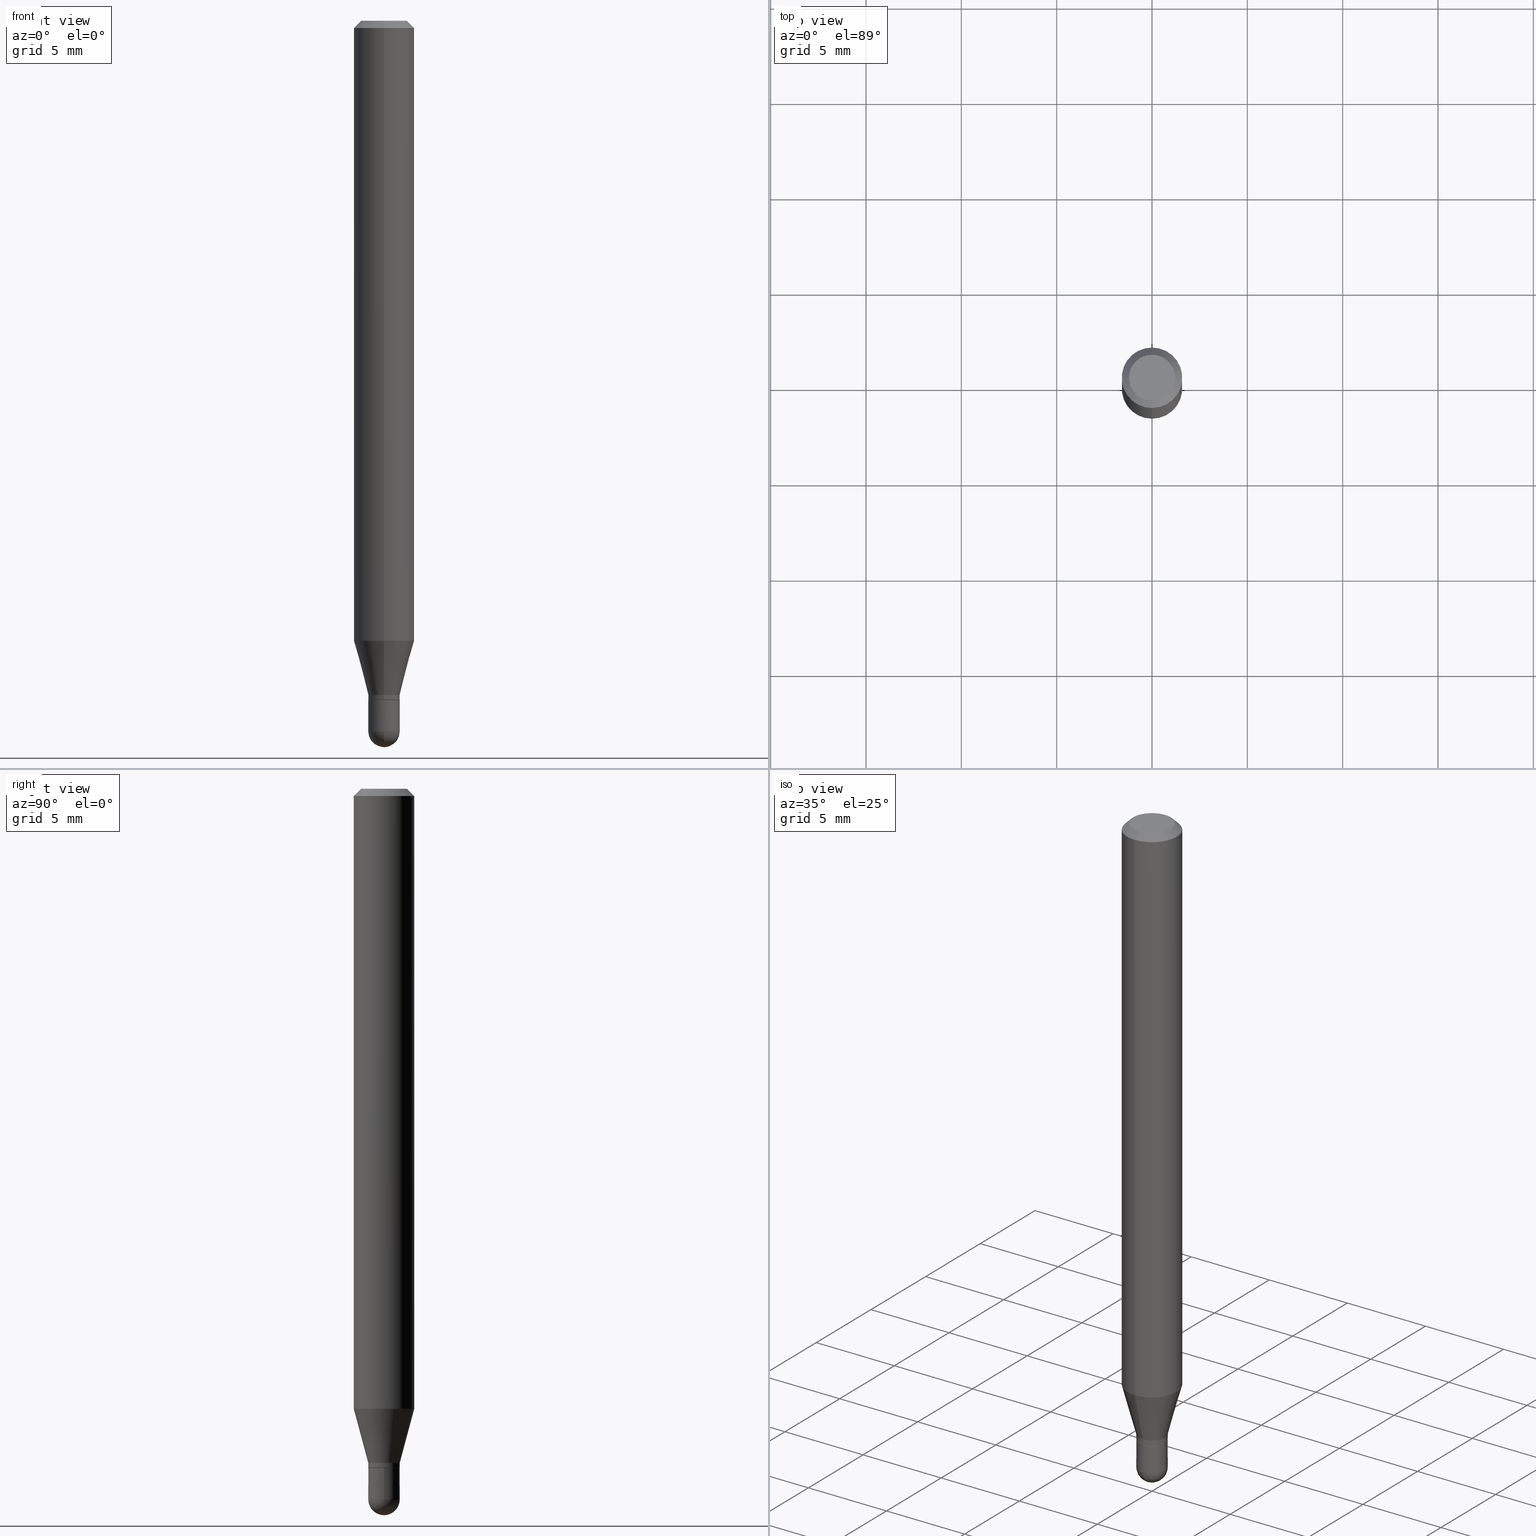
[diagram: canonical four-view strip — front | top / right | iso, engineering-drawing reading convention]
A machine part, canonical four-view strip (front | top / right | iso — engineering-drawing reading convention). The complete STEP part file that produces these views, byte-faithful:
ISO-10303-21;
HEADER;
FILE_DESCRIPTION (( 'STEP AP203' ),
    '1' );
FILE_NAME ('02525.STEP',
    '2024-03-07T20:14:40',
    ( '' ),
    ( '' ),
    'SwSTEP 2.0',
    'SolidWorks 2023',
    '' );
FILE_SCHEMA (( 'CONFIG_CONTROL_DESIGN' ));
ENDSEC;

DATA;
#1 = DIRECTION ( 'NONE',  ( -6.982962677686266711E-15, -1.000000000000000000, 0.000000000000000000 ) ) ;
#2 = EDGE_CURVE ( 'NONE', #100, #91, #437, .T. ) ;
#3 = PERSON_AND_ORGANIZATION ( #497, #474 ) ;
#4 = CARTESIAN_POINT ( 'NONE',  ( 2.309263891220689052E-16, 0.03249999999999494960, -1.467500000000000027 ) ) ;
#5 = EDGE_CURVE ( 'NONE', #8, #217, #399, .T. ) ;
#6 = DIRECTION ( 'NONE',  ( -2.445424704910742757E-29, 3.491544494378165710E-15, 1.000000000000000000 ) ) ;
#7 = VECTOR ( 'NONE', #508, 39.37007874015748143 ) ;
#8 = VERTEX_POINT ( 'NONE', #441 ) ;
#9 = CARTESIAN_POINT ( 'NONE',  ( 3.585946182636855061E-29, -5.127728966849546308E-15, -1.467500000000000027 ) ) ;
#10 = ORIENTED_EDGE ( 'NONE', *, *, #166, .F. ) ;
#11 = DIRECTION ( 'NONE',  ( 2.445424704910742757E-29, -3.491544494378165710E-15, -1.000000000000000000 ) ) ;
#12 = EDGE_CURVE ( 'NONE', #217, #209, #115, .T. ) ;
#13 = CARTESIAN_POINT ( 'NONE',  ( 0.03250000000000000111, -5.236349137930007031E-15, -1.467500000000000027 ) ) ;
#14 = VECTOR ( 'NONE', #493, 39.37007874015748143 ) ;
#15 = AXIS2_PLACEMENT_3D ( 'NONE', #360, #369, #72 ) ;
#16 = DIRECTION ( 'NONE',  ( -2.445424704910742757E-29, 3.491544494378166105E-15, 1.000000000000000000 ) ) ;
#17 = DIRECTION ( 'NONE',  ( -2.445424704910742757E-29, 3.491544494378166105E-15, 1.000000000000000000 ) ) ;
#18 = DIRECTION ( 'NONE',  ( -6.982962677686265922E-15, -1.000000000000000000, 3.483106191921935554E-15 ) ) ;
#19 = ORIENTED_EDGE ( 'NONE', *, *, #135, .F. ) ;
#20 = EDGE_LOOP ( 'NONE', ( #484, #252, #335, #136 ) ) ;
#21 = DIRECTION ( 'NONE',  ( -2.445424704910742757E-29, 3.491544494378166105E-15, 1.000000000000000000 ) ) ;
#22 = VERTEX_POINT ( 'NONE', #434 ) ;
#23 = PRODUCT_DEFINITION_FORMATION_WITH_SPECIFIED_SOURCE ( 'ANY', '', #317, .NOT_KNOWN. ) ;
#24 = ORIENTED_EDGE ( 'NONE', *, *, #161, .F. ) ;
#25 = DIRECTION ( 'NONE',  ( -2.445424704910742757E-29, 3.491544494378166105E-15, 1.000000000000000000 ) ) ;
#26 = ORIENTED_EDGE ( 'NONE', *, *, #132, .T. ) ;
#27 = EDGE_CURVE ( 'NONE', #349, #451, #153, .T. ) ;
#28 = PERSON_AND_ORGANIZATION ( #497, #474 ) ;
#29 = CARTESIAN_POINT ( 'NONE',  ( 8.024513167763535209E-45, -1.145729194389263132E-30, -3.281439478242462597E-16 ) ) ;
#30 = AXIS2_PLACEMENT_3D ( 'NONE', #173, #454, #299 ) ;
#31 = CARTESIAN_POINT ( 'NONE',  ( 3.840629472727447874E-16, 0.04749999999999999362, -4.939923113072091241E-16 ) ) ;
#32 = DATE_TIME_ROLE ( 'creation_date' ) ;
#33 = CC_DESIGN_PERSON_AND_ORGANIZATION_ASSIGNMENT ( #28, #235, ( #131 ) ) ;
#34 = DIRECTION ( 'NONE',  ( -2.445424704910742757E-29, 3.491544494378166105E-15, 1.000000000000000000 ) ) ;
#35 = CARTESIAN_POINT ( 'NONE',  ( 3.130237711891426451E-29, -4.469311292677210707E-15, -1.280038475772935058 ) ) ;
#36 = CLOSED_SHELL ( 'NONE', ( #67, #192, #120, #141, #245 ) ) ;
#37 = SPHERICAL_SURFACE ( 'NONE', #406, 0.03250000000000013989 ) ;
#38 = CALENDAR_DATE ( 2024, 7, 3 ) ;
#39 = SPHERICAL_SURFACE ( 'NONE', #248, 0.03250000000000013989 ) ;
#40 = EDGE_LOOP ( 'NONE', ( #257, #302, #81, #183 ) ) ;
#41 = CARTESIAN_POINT ( 'NONE',  ( 3.428485436284862340E-29, -4.895145381118190532E-15, -1.402000000000000135 ) ) ;
#42 = DIRECTION ( 'NONE',  ( -6.982962677686265922E-15, -1.000000000000000000, 3.491544494378165710E-15 ) ) ;
#43 = AXIS2_PLACEMENT_3D ( 'NONE', #71, #234, #195 ) ;
#44 = AXIS2_PLACEMENT_3D ( 'NONE', #77, #241, #412 ) ;
#45 = VERTEX_POINT ( 'NONE', #146 ) ;
#46 = CARTESIAN_POINT ( 'NONE',  ( 0.03250000000000000111, -5.122003124082894208E-15, -1.402000000000000135 ) ) ;
#47 = ADVANCED_FACE ( 'NONE', ( #403 ), #104, .T. ) ;
#48 = ORIENTED_EDGE ( 'NONE', *, *, #5, .F. ) ;
#49 = CARTESIAN_POINT ( 'NONE',  ( 3.588725473076687933E-29, -5.123748864752316500E-15, -1.467500000000000027 ) ) ;
#50 = EDGE_LOOP ( 'NONE', ( #167, #499, #169, #422 ) ) ;
#51 = DIRECTION ( 'NONE',  ( -2.445424704910742757E-29, 3.491544494378166105E-15, 1.000000000000000000 ) ) ;
#52 = AXIS2_PLACEMENT_3D ( 'NONE', #496, #139, #250 ) ;
#53 = LOCAL_TIME ( 15, 14, 40.00000000000000000, #159 ) ;
#54 = FACE_OUTER_BOUND ( 'NONE', #50, .T. ) ;
#55 = EDGE_LOOP ( 'NONE', ( #300, #122, #94, #291 ) ) ;
#56 = ADVANCED_FACE ( 'NONE', ( #501 ), #357, .T. ) ;
#57 = FACE_OUTER_BOUND ( 'NONE', #216, .T. ) ;
#58 = APPLICATION_PROTOCOL_DEFINITION ( 'international standard', 'config_control_design', 1994, #418 ) ;
#59 = ORIENTED_EDGE ( 'NONE', *, *, #447, .F. ) ;
#60 = AXIS2_PLACEMENT_3D ( 'NONE', #341, #16, #215 ) ;
#61 = DIRECTION ( 'NONE',  ( 1.000000000000000000, -6.982962677686258033E-15, 0.000000000000000000 ) ) ;
#62 = EDGE_CURVE ( 'NONE', #8, #142, #361, .T. ) ;
#63 = DIRECTION ( 'NONE',  ( -2.445468806185136877E-29, 3.491481338843145188E-15, 1.000000000000000000 ) ) ;
#64 = APPROVAL_DATE_TIME ( #469, #456 ) ;
#65 = DIRECTION ( 'NONE',  ( -1.000000000000000000, 6.982962677686265922E-15, -4.876176775795935793E-29 ) ) ;
#66 = CYLINDRICAL_SURFACE ( 'NONE', #337, 0.03250000000000000111 ) ;
#67 = ADVANCED_FACE ( 'NONE', ( #504 ), #66, .T. ) ;
#68 = CIRCLE ( 'NONE', #15, 0.03250000000000013989 ) ;
#69 = PERSON_AND_ORGANIZATION ( #497, #474 ) ;
#70 = CC_DESIGN_SECURITY_CLASSIFICATION ( #131, ( #23 ) ) ;
#71 = CARTESIAN_POINT ( 'NONE',  ( 3.404031189235755546E-29, -4.860229936174407704E-15, -1.392000000000000348 ) ) ;
#72 = DIRECTION ( 'NONE',  ( -6.982962677686266711E-15, -1.000000000000000000, 0.000000000000000000 ) ) ;
#73 = CARTESIAN_POINT ( 'NONE',  ( 3.668137057366194728E-31, -5.237316741567363887E-17, -0.01500000000000032904 ) ) ;
#74 = ORIENTED_EDGE ( 'NONE', *, *, #111, .F. ) ;
#75 = AXIS2_PLACEMENT_3D ( 'NONE', #312, #34, #190 ) ;
#76 = AXIS2_PLACEMENT_3D ( 'NONE', #494, #459, #424 ) ;
#77 = CARTESIAN_POINT ( 'NONE',  ( 0.000000000000000000, 0.000000000000000000, 0.000000000000000000 ) ) ;
#78 = EDGE_CURVE ( 'NONE', #140, #92, #470, .T. ) ;
#79 = LINE ( 'NONE', #244, #375 ) ;
#80 = DIRECTION ( 'NONE',  ( -6.982962677686265133E-15, -1.000000000000000000, 0.000000000000000000 ) ) ;
#81 = ORIENTED_EDGE ( 'NONE', *, *, #489, .F. ) ;
#82 = EDGE_CURVE ( 'NONE', #45, #140, #288, .T. ) ;
#83 = AXIS2_PLACEMENT_3D ( 'NONE', #315, #17, #108 ) ;
#84 = FACE_OUTER_BOUND ( 'NONE', #55, .T. ) ;
#85 = LOCAL_TIME ( 15, 14, 40.00000000000000000, #500 ) ;
#86 = ORIENTED_EDGE ( 'NONE', *, *, #442, .F. ) ;
#87 = CYLINDRICAL_SURFACE ( 'NONE', #502, 0.03250000000000006356 ) ;
#88 = EDGE_LOOP ( 'NONE', ( #425, #237, #207, #391 ) ) ;
#89 = DIRECTION ( 'NONE',  ( -6.982962677686265922E-15, -1.000000000000000000, 3.491544494378166105E-15 ) ) ;
#90 = CARTESIAN_POINT ( 'NONE',  ( 3.668137057366194728E-31, -5.237316741567363887E-17, -0.01500000000000032904 ) ) ;
#91 = VERTEX_POINT ( 'NONE', #270 ) ;
#92 = VERTEX_POINT ( 'NONE', #107 ) ;
#93 = CIRCLE ( 'NONE', #311, 0.04749999999999999362 ) ;
#94 = ORIENTED_EDGE ( 'NONE', *, *, #111, .T. ) ;
#95 = VECTOR ( 'NONE', #346, 39.37007874015748143 ) ;
#96 = DIRECTION ( 'NONE',  ( -2.445424704910742757E-29, 3.491544494378166105E-15, 1.000000000000000000 ) ) ;
#97 = EDGE_CURVE ( 'NONE', #142, #209, #430, .T. ) ;
#98 = DIRECTION ( 'NONE',  ( -2.445468806185136597E-29, 3.491481338843145583E-15, 1.000000000000000000 ) ) ;
#99 = ORIENTED_EDGE ( 'NONE', *, *, #488, .F. ) ;
#100 = VERTEX_POINT ( 'NONE', #31 ) ;
#101 = EDGE_CURVE ( 'NONE', #92, #151, #193, .T. ) ;
#102 = COORDINATED_UNIVERSAL_TIME_OFFSET ( 5, 0, .BEHIND. ) ;
#103 = FACE_OUTER_BOUND ( 'NONE', #204, .T. ) ;
#104 = CONICAL_SURFACE ( 'NONE', #191, 0.03200000000000000067, 0.7853981633974739252 ) ;
#105 = CONICAL_SURFACE ( 'NONE', #407, 0.03200000000000000067, 0.7853981633974739252 ) ;
#106 = CALENDAR_DATE ( 2024, 7, 3 ) ;
#107 = CARTESIAN_POINT ( 'NONE',  ( -4.364351673553605094E-16, -0.06250000000000451028, -1.280038475772934836 ) ) ;
#108 = DIRECTION ( 'NONE',  ( -6.982962677686265922E-15, -1.000000000000000000, 3.491544494378165710E-15 ) ) ;
#109 = EDGE_LOOP ( 'NONE', ( #223, #372, #333, #179 ) ) ;
#110 = PRODUCT_RELATED_PRODUCT_CATEGORY ( 'detail', '', ( #317 ) ) ;
#111 = EDGE_CURVE ( 'NONE', #100, #331, #155, .T. ) ;
#112 = CALENDAR_DATE ( 2024, 7, 3 ) ;
#113 = DESIGN_CONTEXT ( 'detailed design', #418, 'design' ) ;
#114 = DIRECTION ( 'NONE',  ( -4.937700262164674260E-15, -0.7071067811865632269, 0.7071067811865319186 ) ) ;
#115 = CIRCLE ( 'NONE', #413, 0.03249999999999992478 ) ;
#116 = VECTOR ( 'NONE', #268, 39.37007874015748143 ) ;
#117 = CONICAL_SURFACE ( 'NONE', #400, 0.06250000000000000000, 0.7853981633974483900 ) ;
#118 = DIRECTION ( 'NONE',  ( 2.438088387897960049E-29, -3.491481338843145188E-15, -1.000000000000000000 ) ) ;
#119 = DIRECTION ( 'NONE',  ( 1.000000000000000000, -6.982962677686266711E-15, 4.883557194083112901E-29 ) ) ;
#120 = ADVANCED_FACE ( 'NONE', ( #103 ), #432, .F. ) ;
#121 = FACE_OUTER_BOUND ( 'NONE', #460, .T. ) ;
#122 = ORIENTED_EDGE ( 'NONE', *, *, #2, .F. ) ;
#123 = CARTESIAN_POINT ( 'NONE',  ( 2.291500322826662373E-16, 0.03199999999999510181, -1.402000000000000135 ) ) ;
#124 = FACE_OUTER_BOUND ( 'NONE', #20, .T. ) ;
#125 = CARTESIAN_POINT ( 'NONE',  ( 4.440892098500935790E-16, 0.06249999999999548972, -1.280038475772935502 ) ) ;
#126 = ORIENTED_EDGE ( 'NONE', *, *, #442, .T. ) ;
#127 = AXIS2_PLACEMENT_3D ( 'NONE', #475, #118, #65 ) ;
#128 = CYLINDRICAL_SURFACE ( 'NONE', #446, 0.06250000000000000000 ) ;
#129 = CIRCLE ( 'NONE', #147, 0.03249999999999992478 ) ;
#130 = ORIENTED_EDGE ( 'NONE', *, *, #280, .T. ) ;
#131 = SECURITY_CLASSIFICATION ( '', '', #402 ) ;
#132 = EDGE_CURVE ( 'NONE', #22, #336, #276, .T. ) ;
#133 = DIRECTION ( 'NONE',  ( -2.445468806185136597E-29, 3.491481338843145583E-15, 1.000000000000000000 ) ) ;
#134 = CARTESIAN_POINT ( 'NONE',  ( 2.309263891220329627E-16, 0.03250000000000006356, -1.134751960672906183E-16 ) ) ;
#135 = EDGE_CURVE ( 'NONE', #91, #100, #93, .T. ) ;
#136 = ORIENTED_EDGE ( 'NONE', *, *, #388, .F. ) ;
#137 = FACE_OUTER_BOUND ( 'NONE', #40, .T. ) ;
#138 = APPROVAL_PERSON_ORGANIZATION ( #427, #325, #389 ) ;
#139 = DIRECTION ( 'NONE',  ( -2.445468806185136597E-29, 3.491481338843145583E-15, 1.000000000000000000 ) ) ;
#140 = VERTEX_POINT ( 'NONE', #324 ) ;
#141 = ADVANCED_FACE ( 'NONE', ( #404 ), #39, .T. ) ;
#142 = VERTEX_POINT ( 'NONE', #123 ) ;
#143 =( NAMED_UNIT ( * ) PLANE_ANGLE_UNIT ( ) SI_UNIT ( $, .RADIAN. ) );
#144 = CARTESIAN_POINT ( 'NONE',  ( -0.03250000000000000111, 2.309263891220325683E-16, -1.598653904332844407E-30 ) ) ;
#145 = ORIENTED_EDGE ( 'NONE', *, *, #157, .T. ) ;
#146 = CARTESIAN_POINT ( 'NONE',  ( 3.375077994860809709E-16, 0.03249999999999533817, -1.392000000000000348 ) ) ;
#147 = AXIS2_PLACEMENT_3D ( 'NONE', #163, #206, #328 ) ;
#148 = CALENDAR_DATE ( 2024, 7, 3 ) ;
#149 = CC_DESIGN_PERSON_AND_ORGANIZATION_ASSIGNMENT ( #436, #467, ( #307 ) ) ;
#150 = EDGE_LOOP ( 'NONE', ( #272, #26, #59, #344, #297 ) ) ;
#151 = VERTEX_POINT ( 'NONE', #283 ) ;
#152 = DIRECTION ( 'NONE',  ( 1.000000000000000000, -6.982962677686258033E-15, 0.000000000000000000 ) ) ;
#153 = LINE ( 'NONE', #265, #510 ) ;
#154 = ADVANCED_FACE ( 'NONE', ( #409 ), #428, .T. ) ;
#155 = LINE ( 'NONE', #320, #116 ) ;
#156 = AXIS2_PLACEMENT_3D ( 'NONE', #411, #239, #512 ) ;
#157 = EDGE_CURVE ( 'NONE', #45, #293, #443, .T. ) ;
#158 = CIRCLE ( 'NONE', #52, 0.03250000000000000111 ) ;
#159 = COORDINATED_UNIVERSAL_TIME_OFFSET ( 5, 0, .BEHIND. ) ;
#160 = DIRECTION ( 'NONE',  ( 1.839019923739600315E-15, 0.2588190451025249583, 0.9659258262890670910 ) ) ;
#161 = EDGE_CURVE ( 'NONE', #92, #293, #198, .T. ) ;
#162 = CARTESIAN_POINT ( 'NONE',  ( 2.309263891220654539E-16, 0.03249999999999491490, -1.401500000000000412 ) ) ;
#163 = CARTESIAN_POINT ( 'NONE',  ( 3.427262723932406552E-29, -4.893399608871000681E-15, -1.401500000000000412 ) ) ;
#164 = ADVANCED_BREP_SHAPE_REPRESENTATION ( '02525', ( #189, #366, #301 ), #386 ) ;
#165 = CIRCLE ( 'NONE', #495, 0.03250000000000000111 ) ;
#166 = EDGE_CURVE ( 'NONE', #293, #331, #79, .T. ) ;
#167 = ORIENTED_EDGE ( 'NONE', *, *, #417, .F. ) ;
#168 = CARTESIAN_POINT ( 'NONE',  ( -4.287811248607203282E-16, -0.06250000000000005551, -0.01500000000000011047 ) ) ;
#169 = ORIENTED_EDGE ( 'NONE', *, *, #327, .T. ) ;
#170 = CARTESIAN_POINT ( 'NONE',  ( 3.404031189235755546E-29, -4.860229936174407704E-15, -1.392000000000000348 ) ) ;
#171 = CARTESIAN_POINT ( 'NONE',  ( 3.588725473076687933E-29, -5.123748864752316500E-15, -1.467500000000000027 ) ) ;
#172 = ADVANCED_FACE ( 'NONE', ( #236 ), #214, .T. ) ;
#173 = CARTESIAN_POINT ( 'NONE',  ( 3.588725473076687933E-29, -5.123748864752316500E-15, -1.467500000000000027 ) ) ;
#174 = ORIENTED_EDGE ( 'NONE', *, *, #348, .T. ) ;
#175 = DIRECTION ( 'NONE',  ( -2.445468806185136597E-29, 3.491481338843145583E-15, 1.000000000000000000 ) ) ;
#176 = CARTESIAN_POINT ( 'NONE',  ( -0.03250000000000000111, -4.778476461783171307E-15, -1.402000000000000135 ) ) ;
#177 = ORIENTED_EDGE ( 'NONE', *, *, #435, .F. ) ;
#178 = DIRECTION ( 'NONE',  ( -2.445424704910742757E-29, 3.491544494378166105E-15, 1.000000000000000000 ) ) ;
#179 = ORIENTED_EDGE ( 'NONE', *, *, #259, .F. ) ;
#180 = PRODUCT_DEFINITION_SHAPE ( 'NONE', 'NONE',  #307 ) ;
#181 = LOCAL_TIME ( 15, 14, 40.00000000000000000, #102 ) ;
#182 = COORDINATED_UNIVERSAL_TIME_OFFSET ( 5, 0, .BEHIND. ) ;
#183 = ORIENTED_EDGE ( 'NONE', *, *, #101, .F. ) ;
#184 = ORIENTED_EDGE ( 'NONE', *, *, #101, .T. ) ;
#185 = CARTESIAN_POINT ( 'NONE',  ( 0.000000000000000000, 0.000000000000000000, 0.000000000000000000 ) ) ;
#186 = CARTESIAN_POINT ( 'NONE',  ( 3.428485436284862340E-29, -4.895145381118190532E-15, -1.402000000000000135 ) ) ;
#187 = EDGE_CURVE ( 'NONE', #142, #8, #398, .T. ) ;
#188 = CARTESIAN_POINT ( 'NONE',  ( 3.668137057366194728E-31, -5.237316741567363887E-17, -0.01500000000000032904 ) ) ;
#189 = MANIFOLD_SOLID_BREP ( 'Body-Move/Copy2[1]', #36 ) ;
#190 = DIRECTION ( 'NONE',  ( -6.982962677686265133E-15, -1.000000000000000000, 0.000000000000000000 ) ) ;
#191 = AXIS2_PLACEMENT_3D ( 'NONE', #186, #465, #219 ) ;
#192 = ADVANCED_FACE ( 'NONE', ( #196 ), #37, .T. ) ;
#193 = LINE ( 'NONE', #306, #7 ) ;
#194 = PERSON_AND_ORGANIZATION_ROLE ( 'creator' ) ;
#195 = DIRECTION ( 'NONE',  ( -6.982962677686265133E-15, -1.000000000000000000, 0.000000000000000000 ) ) ;
#196 = FACE_OUTER_BOUND ( 'NONE', #383, .T. ) ;
#197 = EDGE_CURVE ( 'NONE', #211, #464, #68, .T. ) ;
#198 = CIRCLE ( 'NONE', #264, 0.06250000000000000000 ) ;
#199 = CONICAL_SURFACE ( 'NONE', #266, 0.03250000000000020234, 0.2617993877991502960 ) ;
#200 = CARTESIAN_POINT ( 'NONE',  ( 3.585946182636855061E-29, -5.127728966849546308E-15, -1.467500000000000027 ) ) ;
#201 = DIMENSIONAL_EXPONENTS ( 1.000000000000000000, 0.000000000000000000, 0.000000000000000000, 0.000000000000000000, 0.000000000000000000, 0.000000000000000000, 0.000000000000000000 ) ;
#202 = CARTESIAN_POINT ( 'NONE',  ( 3.664034273617956147E-29, -5.243192161410563282E-15, -1.500000000000000444 ) ) ;
#203 = DIRECTION ( 'NONE',  ( -6.982962677686266711E-15, -1.000000000000000000, 3.491544494378166499E-15 ) ) ;
#204 = EDGE_LOOP ( 'NONE', ( #356, #225 ) ) ;
#205 = AXIS2_PLACEMENT_3D ( 'NONE', #170, #334, #416 ) ;
#206 = DIRECTION ( 'NONE',  ( -2.445424704910742757E-29, 3.491544494378166105E-15, 1.000000000000000000 ) ) ;
#207 = ORIENTED_EDGE ( 'NONE', *, *, #476, .F. ) ;
#208 = CARTESIAN_POINT ( 'NONE',  ( -2.269462870247682482E-16, -0.03250000000000519140, -1.467500000000000027 ) ) ;
#209 = VERTEX_POINT ( 'NONE', #162 ) ;
#210 = DIRECTION ( 'NONE',  ( -6.982962677686265133E-15, -1.000000000000000000, 0.000000000000000000 ) ) ;
#211 = VERTEX_POINT ( 'NONE', #202 ) ;
#212 = EDGE_LOOP ( 'NONE', ( #86, #229, #482, #397 ) ) ;
#213 = ADVANCED_FACE ( 'NONE', ( #124 ), #199, .T. ) ;
#214 = CONICAL_SURFACE ( 'NONE', #385, 0.06250000000000000000, 0.7853981633974483900 ) ;
#215 = DIRECTION ( 'NONE',  ( -6.982962677686265922E-15, -1.000000000000000000, 3.491544494378166105E-15 ) ) ;
#216 = EDGE_LOOP ( 'NONE', ( #390, #221 ) ) ;
#217 = VERTEX_POINT ( 'NONE', #246 ) ;
#218 = ORIENTED_EDGE ( 'NONE', *, *, #62, .F. ) ;
#219 = DIRECTION ( 'NONE',  ( -6.982962677686265133E-15, -1.000000000000000000, 0.000000000000000000 ) ) ;
#220 = CARTESIAN_POINT ( 'NONE',  ( 4.440892098500940720E-16, 0.06249999999999993755, -0.01500000000000054588 ) ) ;
#221 = ORIENTED_EDGE ( 'NONE', *, *, #135, .T. ) ;
#222 = CARTESIAN_POINT ( 'NONE',  ( 3.668137057366194728E-31, -5.237316741567363887E-17, -0.01500000000000032904 ) ) ;
#223 = ORIENTED_EDGE ( 'NONE', *, *, #97, .F. ) ;
#224 =( NAMED_UNIT ( * ) SI_UNIT ( $, .STERADIAN. ) SOLID_ANGLE_UNIT ( ) );
#225 = ORIENTED_EDGE ( 'NONE', *, *, #509, .T. ) ;
#226 = AXIS2_PLACEMENT_3D ( 'NONE', #29, #25, #351 ) ;
#227 = CC_DESIGN_APPROVAL ( #456, ( #23 ) ) ;
#228 = DIRECTION ( 'NONE',  ( -6.982962677686265922E-15, -1.000000000000000000, 3.483106191921935554E-15 ) ) ;
#229 = ORIENTED_EDGE ( 'NONE', *, *, #197, .T. ) ;
#230 = CARTESIAN_POINT ( 'NONE',  ( 8.024513167763535209E-45, -1.145729194389263132E-30, -3.281439478242462597E-16 ) ) ;
#231 = DIRECTION ( 'NONE',  ( -2.445424704910742757E-29, 3.491544494378166105E-15, 1.000000000000000000 ) ) ;
#232 = DIRECTION ( 'NONE',  ( -2.445424704910742757E-29, 3.491544494378166105E-15, 1.000000000000000000 ) ) ;
#233 = DIRECTION ( 'NONE',  ( 0.000000000000000000, 0.000000000000000000, 1.000000000000000000 ) ) ;
#234 = DIRECTION ( 'NONE',  ( -2.445424704910742757E-29, 3.491544494378166105E-15, 1.000000000000000000 ) ) ;
#235 = PERSON_AND_ORGANIZATION_ROLE ( 'classification_officer' ) ;
#236 = FACE_OUTER_BOUND ( 'NONE', #285, .T. ) ;
#237 = ORIENTED_EDGE ( 'NONE', *, *, #417, .T. ) ;
#238 = DATE_AND_TIME ( #365, #53 ) ;
#239 = DIRECTION ( 'NONE',  ( -2.445424704910742757E-29, 3.491544494378166105E-15, 1.000000000000000000 ) ) ;
#240 = APPROVAL_ROLE ( '' ) ;
#241 = DIRECTION ( 'NONE',  ( -2.445468806185136597E-29, 3.491481338843145583E-15, 1.000000000000000000 ) ) ;
#242 = ADVANCED_FACE ( 'NONE', ( #121 ), #278, .F. ) ;
#243 = EDGE_LOOP ( 'NONE', ( #247, #145, #24, #440 ) ) ;
#244 = CARTESIAN_POINT ( 'NONE',  ( 4.440892098500625669E-16, 0.06250000000000000000, -2.182215308986353569E-16 ) ) ;
#245 = ADVANCED_FACE ( 'NONE', ( #332 ), #367, .T. ) ;
#246 = CARTESIAN_POINT ( 'NONE',  ( -2.269462870247696287E-16, -0.03250000000000492772, -1.401500000000000412 ) ) ;
#247 = ORIENTED_EDGE ( 'NONE', *, *, #476, .T. ) ;
#248 = AXIS2_PLACEMENT_3D ( 'NONE', #9, #119, #277 ) ;
#249 = CIRCLE ( 'NONE', #354, 0.06250000000000000000 ) ;
#250 = DIRECTION ( 'NONE',  ( 1.000000000000000000, -6.982962677686258033E-15, 0.000000000000000000 ) ) ;
#251 = LINE ( 'NONE', #134, #329 ) ;
#252 = ORIENTED_EDGE ( 'NONE', *, *, #82, .T. ) ;
#253 = APPLICATION_CONTEXT ( 'configuration controlled 3d designs of mechanical parts and assemblies' ) ;
#254 = PLANE ( 'NONE',  #347 ) ;
#255 = CARTESIAN_POINT ( 'NONE',  ( -2.269462870248040921E-16, -0.03250000000000006356, 1.134751960672906183E-16 ) ) ;
#256 = CIRCLE ( 'NONE', #420, 0.03250000000000000111 ) ;
#257 = ORIENTED_EDGE ( 'NONE', *, *, #161, .T. ) ;
#258 = VERTEX_POINT ( 'NONE', #4 ) ;
#259 = EDGE_CURVE ( 'NONE', #209, #217, #129, .T. ) ;
#260 = DIRECTION ( 'NONE',  ( 6.982962677686265922E-15, 1.000000000000000000, -3.483106191921935554E-15 ) ) ;
#261 = ORIENTED_EDGE ( 'NONE', *, *, #509, .F. ) ;
#262 = PERSON_AND_ORGANIZATION ( #497, #474 ) ;
#263 = UNCERTAINTY_MEASURE_WITH_UNIT (LENGTH_MEASURE( 1.000000000000000082E-05 ), #267, 'distance_accuracy_value', 'NONE');
#264 = AXIS2_PLACEMENT_3D ( 'NONE', #35, #330, #284 ) ;
#265 = CARTESIAN_POINT ( 'NONE',  ( 0.03250000000000000111, -2.269462870248036977E-16, 1.584757452133679343E-30 ) ) ;
#266 = AXIS2_PLACEMENT_3D ( 'NONE', #326, #450, #80 ) ;
#267 =( CONVERSION_BASED_UNIT ( 'INCH', #352 ) LENGTH_UNIT ( ) NAMED_UNIT ( #201 ) );
#268 = DIRECTION ( 'NONE',  ( 4.937700262164548042E-15, 0.7071067811865451302, -0.7071067811865499042 ) ) ;
#269 = DATE_AND_TIME ( #148, #181 ) ;
#270 = CARTESIAN_POINT ( 'NONE',  ( -3.773273898774340269E-16, -0.04749999999999999362, -1.622955843412833461E-16 ) ) ;
#271 = DATE_AND_TIME ( #112, #274 ) ;
#272 = ORIENTED_EDGE ( 'NONE', *, *, #309, .T. ) ;
#273 = VECTOR ( 'NONE', #438, 39.37007874015748143 ) ;
#274 = LOCAL_TIME ( 15, 14, 40.00000000000000000, #182 ) ;
#275 = CC_DESIGN_PERSON_AND_ORGANIZATION_ASSIGNMENT ( #69, #431, ( #23 ) ) ;
#276 = LINE ( 'NONE', #144, #298 ) ;
#277 = DIRECTION ( 'NONE',  ( -6.982962677686266711E-15, -1.000000000000000000, 0.000000000000000000 ) ) ;
#278 = PLANE ( 'NONE',  #338 ) ;
#279 = APPROVAL ( #282, 'UNSPECIFIED' ) ;
#280 = EDGE_CURVE ( 'NONE', #91, #151, #371, .T. ) ;
#281 = AXIS2_PLACEMENT_3D ( 'NONE', #90, #382, #18 ) ;
#282 = APPROVAL_STATUS ( 'not_yet_approved' ) ;
#283 = CARTESIAN_POINT ( 'NONE',  ( -4.364351673553912750E-16, -0.06250000000000005551, -0.01500000000000011047 ) ) ;
#284 = DIRECTION ( 'NONE',  ( -6.982962677686265922E-15, -1.000000000000000000, 4.370956789862821150E-15 ) ) ;
#285 = EDGE_LOOP ( 'NONE', ( #19, #130, #463, #74 ) ) ;
#286 = ORIENTED_EDGE ( 'NONE', *, *, #388, .T. ) ;
#287 = DIRECTION ( 'NONE',  ( 1.000000000000000000, -6.982962677686266711E-15, 4.883557194083112901E-29 ) ) ;
#288 = CIRCLE ( 'NONE', #43, 0.03250000000000020234 ) ;
#289 = CIRCLE ( 'NONE', #281, 0.06250000000000000000 ) ;
#290 = CARTESIAN_POINT ( 'NONE',  ( 3.316907271900976096E-16, 0.04749999999999999362, -3.299203373950860189E-16 ) ) ;
#291 = ORIENTED_EDGE ( 'NONE', *, *, #435, .T. ) ;
#292 = FACE_OUTER_BOUND ( 'NONE', #304, .T. ) ;
#293 = VERTEX_POINT ( 'NONE', #125 ) ;
#294 = DIRECTION ( 'NONE',  ( -2.445424704910742757E-29, 3.491544494378165710E-15, 1.000000000000000000 ) ) ;
#295 = ORIENTED_EDGE ( 'NONE', *, *, #488, .T. ) ;
#296 = CC_DESIGN_DATE_AND_TIME_ASSIGNMENT ( #269, #32, ( #307 ) ) ;
#297 = ORIENTED_EDGE ( 'NONE', *, *, #408, .T. ) ;
#298 = VECTOR ( 'NONE', #63, 39.37007874015748143 ) ;
#299 = DIRECTION ( 'NONE',  ( 1.000000000000000000, -6.982962677686258033E-15, 0.000000000000000000 ) ) ;
#300 = ORIENTED_EDGE ( 'NONE', *, *, #280, .F. ) ;
#301 = AXIS2_PLACEMENT_3D ( 'NONE', #185, #233, #503 ) ;
#302 = ORIENTED_EDGE ( 'NONE', *, *, #166, .T. ) ;
#303 = APPLICATION_PROTOCOL_DEFINITION ( 'international standard', 'config_control_design', 1994, #253 ) ;
#304 = EDGE_LOOP ( 'NONE', ( #462, #368, #507, #48 ) ) ;
#305 = PERSON_AND_ORGANIZATION ( #497, #474 ) ;
#306 = CARTESIAN_POINT ( 'NONE',  ( -4.364351673553916201E-16, -0.06250000000000000000, 2.182215308986353569E-16 ) ) ;
#307 = PRODUCT_DEFINITION ( 'UNKNOWN', '', #23, #113 ) ;
#308 = PERSON_AND_ORGANIZATION_ROLE ( 'design_owner' ) ;
#309 = EDGE_CURVE ( 'NONE', #258, #22, #256, .T. ) ;
#310 = ORIENTED_EDGE ( 'NONE', *, *, #132, .F. ) ;
#311 = AXIS2_PLACEMENT_3D ( 'NONE', #230, #231, #203 ) ;
#312 = CARTESIAN_POINT ( 'NONE',  ( 3.428485436284862340E-29, -4.895145381118190532E-15, -1.402000000000000135 ) ) ;
#313 = CIRCLE ( 'NONE', #30, 0.03250000000000000111 ) ;
#314 = APPROVAL_STATUS ( 'not_yet_approved' ) ;
#315 = CARTESIAN_POINT ( 'NONE',  ( 0.000000000000000000, 0.000000000000000000, 0.000000000000000000 ) ) ;
#316 = ORIENTED_EDGE ( 'NONE', *, *, #187, .F. ) ;
#317 = PRODUCT ( '02525', '02525', '', ( #471 ) ) ;
#318 = DIRECTION ( 'NONE',  ( -2.445468806185136877E-29, 3.491481338843145188E-15, 1.000000000000000000 ) ) ;
#319 = APPROVAL_DATE_TIME ( #449, #279 ) ;
#320 = CARTESIAN_POINT ( 'NONE',  ( 4.364351673553919652E-16, 0.06249999999999995143, -0.01500000000000054588 ) ) ;
#321 = AXIS2_PLACEMENT_3D ( 'NONE', #363, #405, #448 ) ;
#322 = APPROVAL_PERSON_ORGANIZATION ( #262, #456, #350 ) ;
#323 = SHAPE_DEFINITION_REPRESENTATION ( #180, #164 ) ;
#324 = CARTESIAN_POINT ( 'NONE',  ( -2.269462870247710093E-16, -0.03250000000000505956, -1.392000000000000348 ) ) ;
#325 = APPROVAL ( #506, 'UNSPECIFIED' ) ;
#326 = CARTESIAN_POINT ( 'NONE',  ( 3.404031189235755546E-29, -4.860229936174407704E-15, -1.392000000000000348 ) ) ;
#327 = EDGE_CURVE ( 'NONE', #217, #140, #485, .T. ) ;
#328 = DIRECTION ( 'NONE',  ( -6.982962677686265922E-15, -1.000000000000000000, 0.000000000000000000 ) ) ;
#329 = VECTOR ( 'NONE', #294, 39.37007874015748143 ) ;
#330 = DIRECTION ( 'NONE',  ( -2.445424704910742757E-29, 3.491544494378166105E-15, 1.000000000000000000 ) ) ;
#331 = VERTEX_POINT ( 'NONE', #220 ) ;
#332 = FACE_OUTER_BOUND ( 'NONE', #392, .T. ) ;
#333 = ORIENTED_EDGE ( 'NONE', *, *, #5, .T. ) ;
#334 = DIRECTION ( 'NONE',  ( -2.445424704910742757E-29, 3.491544494378166105E-15, 1.000000000000000000 ) ) ;
#335 = ORIENTED_EDGE ( 'NONE', *, *, #78, .T. ) ;
#336 = VERTEX_POINT ( 'NONE', #176 ) ;
#337 = AXIS2_PLACEMENT_3D ( 'NONE', #472, #175, #342 ) ;
#338 = AXIS2_PLACEMENT_3D ( 'NONE', #41, #6, #42 ) ;
#339 = CARTESIAN_POINT ( 'NONE',  ( 0.000000000000000000, 0.000000000000000000, 0.000000000000000000 ) ) ;
#340 = ADVANCED_FACE ( 'NONE', ( #137 ), #128, .T. ) ;
#341 = CARTESIAN_POINT ( 'NONE',  ( 0.000000000000000000, 0.000000000000000000, 0.000000000000000000 ) ) ;
#342 = DIRECTION ( 'NONE',  ( 1.000000000000000000, -6.982962677686267499E-15, 4.876176775795936353E-29 ) ) ;
#343 = DIRECTION ( 'NONE',  ( 6.982962677686265922E-15, 1.000000000000000000, -3.491544494378165710E-15 ) ) ;
#344 = ORIENTED_EDGE ( 'NONE', *, *, #27, .F. ) ;
#345 = ADVANCED_FACE ( 'NONE', ( #415 ), #384, .T. ) ;
#346 = DIRECTION ( 'NONE',  ( -2.445424704910742757E-29, 3.491544494378165710E-15, 1.000000000000000000 ) ) ;
#347 = AXIS2_PLACEMENT_3D ( 'NONE', #290, #11, #343 ) ;
#348 = EDGE_CURVE ( 'NONE', #22, #464, #165, .T. ) ;
#349 = VERTEX_POINT ( 'NONE', #13 ) ;
#350 = APPROVAL_ROLE ( '' ) ;
#351 = DIRECTION ( 'NONE',  ( -6.982962677686266711E-15, -1.000000000000000000, 3.491544494378166499E-15 ) ) ;
#352 = LENGTH_MEASURE_WITH_UNIT ( LENGTH_MEASURE( 0.02539999999999999897 ), #396 );
#353 = CARTESIAN_POINT ( 'NONE',  ( -2.234548056859262272E-16, -0.03200000000000489259, -1.402000000000000135 ) ) ;
#354 = AXIS2_PLACEMENT_3D ( 'NONE', #188, #461, #228 ) ;
#355 = LOCAL_TIME ( 15, 14, 40.00000000000000000, #473 ) ;
#356 = ORIENTED_EDGE ( 'NONE', *, *, #447, .T. ) ;
#357 = CYLINDRICAL_SURFACE ( 'NONE', #83, 0.06250000000000000000 ) ;
#358 = PERSON_AND_ORGANIZATION ( #497, #474 ) ;
#359 = CARTESIAN_POINT ( 'NONE',  ( 2.273736754432662811E-16, 0.03199999999999510181, -1.402000000000000135 ) ) ;
#360 = CARTESIAN_POINT ( 'NONE',  ( 3.585946182636855061E-29, -5.127728966849546308E-15, -1.467500000000000027 ) ) ;
#361 = CIRCLE ( 'NONE', #75, 0.03200000000000000067 ) ;
#362 = CIRCLE ( 'NONE', #76, 0.03250000000000013989 ) ;
#363 = CARTESIAN_POINT ( 'NONE',  ( 3.404031189235755546E-29, -4.860229936174407704E-15, -1.392000000000000348 ) ) ;
#364 = ADVANCED_FACE ( 'NONE', ( #292 ), #105, .T. ) ;
#365 = CALENDAR_DATE ( 2024, 7, 3 ) ;
#366 = MANIFOLD_SOLID_BREP ( 'Body-Move/Copy2[2]', #486 ) ;
#367 = CYLINDRICAL_SURFACE ( 'NONE', #44, 0.03250000000000000111 ) ;
#368 = ORIENTED_EDGE ( 'NONE', *, *, #97, .T. ) ;
#369 = DIRECTION ( 'NONE',  ( -1.000000000000000000, 6.982962677686265922E-15, -4.883557194083112340E-29 ) ) ;
#370 = CIRCLE ( 'NONE', #458, 0.03250000000000000111 ) ;
#371 = LINE ( 'NONE', #168, #487 ) ;
#372 = ORIENTED_EDGE ( 'NONE', *, *, #187, .T. ) ;
#373 = DIRECTION ( 'NONE',  ( 1.000000000000000000, -6.982962677686258033E-15, 0.000000000000000000 ) ) ;
#374 = DIRECTION ( 'NONE',  ( -2.445468806185136597E-29, 3.491481338843145583E-15, 1.000000000000000000 ) ) ;
#375 = VECTOR ( 'NONE', #444, 39.37007874015748143 ) ;
#376 = ADVANCED_FACE ( 'NONE', ( #57 ), #254, .F. ) ;
#377 = AXIS2_PLACEMENT_3D ( 'NONE', #49, #498, #61 ) ;
#378 = CC_DESIGN_APPROVAL ( #279, ( #131 ) ) ;
#379 = DIRECTION ( 'NONE',  ( -6.982962677686265922E-15, -1.000000000000000000, 4.370956789862821150E-15 ) ) ;
#380 = CARTESIAN_POINT ( 'NONE',  ( 3.427262723932406552E-29, -4.893399608871000681E-15, -1.401500000000000412 ) ) ;
#381 = ADVANCED_FACE ( 'NONE', ( #54 ), #87, .T. ) ;
#382 = DIRECTION ( 'NONE',  ( -2.445424704910742757E-29, 3.491544494378166105E-15, 1.000000000000000000 ) ) ;
#383 = EDGE_LOOP ( 'NONE', ( #410, #126, #394, #99 ) ) ;
#384 = CYLINDRICAL_SURFACE ( 'NONE', #60, 0.03250000000000006356 ) ;
#385 = AXIS2_PLACEMENT_3D ( 'NONE', #73, #477, #481 ) ;
#386 =( GEOMETRIC_REPRESENTATION_CONTEXT ( 3 ) GLOBAL_UNCERTAINTY_ASSIGNED_CONTEXT ( ( #263 ) ) GLOBAL_UNIT_ASSIGNED_CONTEXT ( ( #267, #143, #224 ) ) REPRESENTATION_CONTEXT ( 'NONE', 'WORKASPACE' ) );
#387 = APPROVAL_DATE_TIME ( #271, #325 ) ;
#388 = EDGE_CURVE ( 'NONE', #293, #92, #439, .T. ) ;
#389 = APPROVAL_ROLE ( '' ) ;
#390 = ORIENTED_EDGE ( 'NONE', *, *, #2, .T. ) ;
#391 = ORIENTED_EDGE ( 'NONE', *, *, #327, .F. ) ;
#392 = EDGE_LOOP ( 'NONE', ( #310, #174, #295, #492, #261 ) ) ;
#393 = CARTESIAN_POINT ( 'NONE',  ( 3.428547266271562329E-29, -4.895056837058090855E-15, -1.402000000000000135 ) ) ;
#394 = ORIENTED_EDGE ( 'NONE', *, *, #408, .F. ) ;
#395 = CC_DESIGN_DATE_AND_TIME_ASSIGNMENT ( #238, #478, ( #131 ) ) ;
#396 =( LENGTH_UNIT ( ) NAMED_UNIT ( * ) SI_UNIT ( $, .METRE. ) );
#397 = ORIENTED_EDGE ( 'NONE', *, *, #309, .F. ) ;
#398 = CIRCLE ( 'NONE', #156, 0.03200000000000000067 ) ;
#399 = LINE ( 'NONE', #353, #453 ) ;
#400 = AXIS2_PLACEMENT_3D ( 'NONE', #222, #457, #260 ) ;
#401 = APPROVAL_PERSON_ORGANIZATION ( #3, #279, #240 ) ;
#402 = SECURITY_CLASSIFICATION_LEVEL ( 'unclassified' ) ;
#403 = FACE_OUTER_BOUND ( 'NONE', #109, .T. ) ;
#404 = FACE_OUTER_BOUND ( 'NONE', #212, .T. ) ;
#405 = DIRECTION ( 'NONE',  ( -2.445424704910742757E-29, 3.491544494378166105E-15, 1.000000000000000000 ) ) ;
#406 = AXIS2_PLACEMENT_3D ( 'NONE', #200, #287, #1 ) ;
#407 = AXIS2_PLACEMENT_3D ( 'NONE', #452, #21, #210 ) ;
#408 = EDGE_CURVE ( 'NONE', #349, #258, #313, .T. ) ;
#409 = FACE_OUTER_BOUND ( 'NONE', #243, .T. ) ;
#410 = ORIENTED_EDGE ( 'NONE', *, *, #197, .F. ) ;
#411 = CARTESIAN_POINT ( 'NONE',  ( 3.428485436284862340E-29, -4.895145381118190532E-15, -1.402000000000000135 ) ) ;
#412 = DIRECTION ( 'NONE',  ( 1.000000000000000000, -6.982962677686267499E-15, 4.876176775795936353E-29 ) ) ;
#413 = AXIS2_PLACEMENT_3D ( 'NONE', #380, #232, #505 ) ;
#414 = CC_DESIGN_APPROVAL ( #325, ( #307 ) ) ;
#415 = FACE_OUTER_BOUND ( 'NONE', #88, .T. ) ;
#416 = DIRECTION ( 'NONE',  ( -6.982962677686265133E-15, -1.000000000000000000, 0.000000000000000000 ) ) ;
#417 = EDGE_CURVE ( 'NONE', #209, #45, #251, .T. ) ;
#418 = APPLICATION_CONTEXT ( 'configuration controlled 3d designs of mechanical parts and assemblies' ) ;
#419 = CARTESIAN_POINT ( 'NONE',  ( 3.130237711891426451E-29, -4.469311292677210707E-15, -1.280038475772935058 ) ) ;
#420 = AXIS2_PLACEMENT_3D ( 'NONE', #421, #374, #455 ) ;
#421 = CARTESIAN_POINT ( 'NONE',  ( 3.588725473076687933E-29, -5.123748864752316500E-15, -1.467500000000000027 ) ) ;
#422 = ORIENTED_EDGE ( 'NONE', *, *, #82, .F. ) ;
#423 = EDGE_LOOP ( 'NONE', ( #10, #286, #184, #177 ) ) ;
#424 = DIRECTION ( 'NONE',  ( 7.105427357601000281E-15, 1.000000000000000000, 0.000000000000000000 ) ) ;
#425 = ORIENTED_EDGE ( 'NONE', *, *, #12, .T. ) ;
#426 = CC_DESIGN_PERSON_AND_ORGANIZATION_ASSIGNMENT ( #305, #308, ( #317 ) ) ;
#427 = PERSON_AND_ORGANIZATION ( #497, #474 ) ;
#428 = CONICAL_SURFACE ( 'NONE', #321, 0.03250000000000020234, 0.2617993877991502960 ) ;
#429 = CIRCLE ( 'NONE', #205, 0.03250000000000020234 ) ;
#430 = LINE ( 'NONE', #359, #14 ) ;
#431 = PERSON_AND_ORGANIZATION_ROLE ( 'design_supplier' ) ;
#432 = PLANE ( 'NONE',  #127 ) ;
#433 = ADVANCED_FACE ( 'NONE', ( #84 ), #117, .T. ) ;
#434 = CARTESIAN_POINT ( 'NONE',  ( -0.03250000000000000111, -4.778476461783171307E-15, -1.467500000000000027 ) ) ;
#435 = EDGE_CURVE ( 'NONE', #331, #151, #289, .T. ) ;
#436 = PERSON_AND_ORGANIZATION ( #497, #474 ) ;
#437 = CIRCLE ( 'NONE', #226, 0.04749999999999999362 ) ;
#438 = DIRECTION ( 'NONE',  ( -1.807323732225330139E-15, -0.2588190451025181860, 0.9659258262890689783 ) ) ;
#439 = CIRCLE ( 'NONE', #466, 0.06250000000000000000 ) ;
#440 = ORIENTED_EDGE ( 'NONE', *, *, #78, .F. ) ;
#441 = CARTESIAN_POINT ( 'NONE',  ( -2.234548056859262272E-16, -0.03200000000000489259, -1.402000000000000135 ) ) ;
#442 = EDGE_CURVE ( 'NONE', #211, #258, #362, .T. ) ;
#443 = LINE ( 'NONE', #479, #445 ) ;
#444 = DIRECTION ( 'NONE',  ( -2.445424704910742757E-29, 3.491544494378165710E-15, 1.000000000000000000 ) ) ;
#445 = VECTOR ( 'NONE', #160, 39.37007874015748143 ) ;
#446 = AXIS2_PLACEMENT_3D ( 'NONE', #490, #51, #491 ) ;
#447 = EDGE_CURVE ( 'NONE', #451, #336, #158, .T. ) ;
#448 = DIRECTION ( 'NONE',  ( -6.982962677686265133E-15, -1.000000000000000000, 0.000000000000000000 ) ) ;
#449 = DATE_AND_TIME ( #38, #355 ) ;
#450 = DIRECTION ( 'NONE',  ( -2.445424704910742757E-29, 3.491544494378166105E-15, 1.000000000000000000 ) ) ;
#451 = VERTEX_POINT ( 'NONE', #46 ) ;
#452 = CARTESIAN_POINT ( 'NONE',  ( 3.428485436284862340E-29, -4.895145381118190532E-15, -1.402000000000000135 ) ) ;
#453 = VECTOR ( 'NONE', #114, 39.37007874015748143 ) ;
#454 = DIRECTION ( 'NONE',  ( -2.445468806185136597E-29, 3.491481338843145583E-15, 1.000000000000000000 ) ) ;
#455 = DIRECTION ( 'NONE',  ( 1.000000000000000000, -6.982962677686258033E-15, 0.000000000000000000 ) ) ;
#456 = APPROVAL ( #314, 'UNSPECIFIED' ) ;
#457 = DIRECTION ( 'NONE',  ( 2.445424704910742757E-29, -3.491544494378166105E-15, -1.000000000000000000 ) ) ;
#458 = AXIS2_PLACEMENT_3D ( 'NONE', #393, #98, #152 ) ;
#459 = DIRECTION ( 'NONE',  ( 1.000000000000000000, -7.105427357601001070E-15, 4.926315508542082329E-29 ) ) ;
#460 = EDGE_LOOP ( 'NONE', ( #218, #316 ) ) ;
#461 = DIRECTION ( 'NONE',  ( -2.445424704910742757E-29, 3.491544494378166105E-15, 1.000000000000000000 ) ) ;
#462 = ORIENTED_EDGE ( 'NONE', *, *, #62, .T. ) ;
#463 = ORIENTED_EDGE ( 'NONE', *, *, #489, .T. ) ;
#464 = VERTEX_POINT ( 'NONE', #208 ) ;
#465 = DIRECTION ( 'NONE',  ( -2.445424704910742757E-29, 3.491544494378166105E-15, 1.000000000000000000 ) ) ;
#466 = AXIS2_PLACEMENT_3D ( 'NONE', #419, #178, #379 ) ;
#467 = PERSON_AND_ORGANIZATION_ROLE ( 'creator' ) ;
#468 = CARTESIAN_POINT ( 'NONE',  ( -2.269462870247710093E-16, -0.03250000000000505956, -1.392000000000000348 ) ) ;
#469 = DATE_AND_TIME ( #106, #85 ) ;
#470 = LINE ( 'NONE', #468, #273 ) ;
#471 = MECHANICAL_CONTEXT ( 'NONE', #253, 'mechanical' ) ;
#472 = CARTESIAN_POINT ( 'NONE',  ( 0.000000000000000000, 0.000000000000000000, 0.000000000000000000 ) ) ;
#473 = COORDINATED_UNIVERSAL_TIME_OFFSET ( 5, 0, .BEHIND. ) ;
#474 = ORGANIZATION ( 'UNSPECIFIED', 'UNSPECIFIED', '' ) ;
#475 = CARTESIAN_POINT ( 'NONE',  ( 2.269462870248379145E-16, 0.03249999999999510225, -1.402000000000000135 ) ) ;
#476 = EDGE_CURVE ( 'NONE', #140, #45, #429, .T. ) ;
#477 = DIRECTION ( 'NONE',  ( 2.445424704910742757E-29, -3.491544494378166105E-15, -1.000000000000000000 ) ) ;
#478 = DATE_TIME_ROLE ( 'classification_date' ) ;
#479 = CARTESIAN_POINT ( 'NONE',  ( 2.309263891220679684E-16, 0.03249999999999533817, -1.392000000000000348 ) ) ;
#480 = CC_DESIGN_PERSON_AND_ORGANIZATION_ASSIGNMENT ( #358, #194, ( #23 ) ) ;
#481 = DIRECTION ( 'NONE',  ( 6.982962677686265922E-15, 1.000000000000000000, -3.483106191921935554E-15 ) ) ;
#482 = ORIENTED_EDGE ( 'NONE', *, *, #348, .F. ) ;
#483 = DIRECTION ( 'NONE',  ( -4.851104656540964275E-15, -0.7071067811865500152, -0.7071067811865450192 ) ) ;
#484 = ORIENTED_EDGE ( 'NONE', *, *, #157, .F. ) ;
#485 = LINE ( 'NONE', #255, #95 ) ;
#486 = CLOSED_SHELL ( 'NONE', ( #345, #364, #172, #340, #154, #213, #56, #433, #376, #242, #47, #381 ) ) ;
#487 = VECTOR ( 'NONE', #483, 39.37007874015748143 ) ;
#488 = EDGE_CURVE ( 'NONE', #464, #349, #511, .T. ) ;
#489 = EDGE_CURVE ( 'NONE', #151, #331, #249, .T. ) ;
#490 = CARTESIAN_POINT ( 'NONE',  ( 0.000000000000000000, 0.000000000000000000, 0.000000000000000000 ) ) ;
#491 = DIRECTION ( 'NONE',  ( -6.982962677686265922E-15, -1.000000000000000000, 3.491544494378165710E-15 ) ) ;
#492 = ORIENTED_EDGE ( 'NONE', *, *, #27, .T. ) ;
#493 = DIRECTION ( 'NONE',  ( 5.024295867788190974E-15, 0.7071067811865681119, 0.7071067811865270336 ) ) ;
#494 = CARTESIAN_POINT ( 'NONE',  ( 3.585946182636855061E-29, -5.127728966849546308E-15, -1.467500000000000027 ) ) ;
#495 = AXIS2_PLACEMENT_3D ( 'NONE', #171, #133, #373 ) ;
#496 = CARTESIAN_POINT ( 'NONE',  ( 3.428547266271562329E-29, -4.895056837058090855E-15, -1.402000000000000135 ) ) ;
#497 = PERSON ( 'UNSPECIFIED', 'UNSPECIFIED', 'UNSPECIFIED', ('UNSPECIFIED'), ('UNSPECIFIED'), ('UNSPECIFIED') ) ;
#498 = DIRECTION ( 'NONE',  ( -2.445468806185136597E-29, 3.491481338843145583E-15, 1.000000000000000000 ) ) ;
#499 = ORIENTED_EDGE ( 'NONE', *, *, #259, .T. ) ;
#500 = COORDINATED_UNIVERSAL_TIME_OFFSET ( 5, 0, .BEHIND. ) ;
#501 = FACE_OUTER_BOUND ( 'NONE', #423, .T. ) ;
#502 = AXIS2_PLACEMENT_3D ( 'NONE', #339, #96, #89 ) ;
#503 = DIRECTION ( 'NONE',  ( 1.000000000000000000, 0.000000000000000000, 0.000000000000000000 ) ) ;
#504 = FACE_OUTER_BOUND ( 'NONE', #150, .T. ) ;
#505 = DIRECTION ( 'NONE',  ( -6.982962677686265922E-15, -1.000000000000000000, 0.000000000000000000 ) ) ;
#506 = APPROVAL_STATUS ( 'not_yet_approved' ) ;
#507 = ORIENTED_EDGE ( 'NONE', *, *, #12, .F. ) ;
#508 = DIRECTION ( 'NONE',  ( -2.445424704910742757E-29, 3.491544494378165710E-15, 1.000000000000000000 ) ) ;
#509 = EDGE_CURVE ( 'NONE', #336, #451, #370, .T. ) ;
#510 = VECTOR ( 'NONE', #318, 39.37007874015748143 ) ;
#511 = CIRCLE ( 'NONE', #377, 0.03250000000000000111 ) ;
#512 = DIRECTION ( 'NONE',  ( -6.982962677686265133E-15, -1.000000000000000000, 0.000000000000000000 ) ) ;
ENDSEC;
END-ISO-10303-21;
